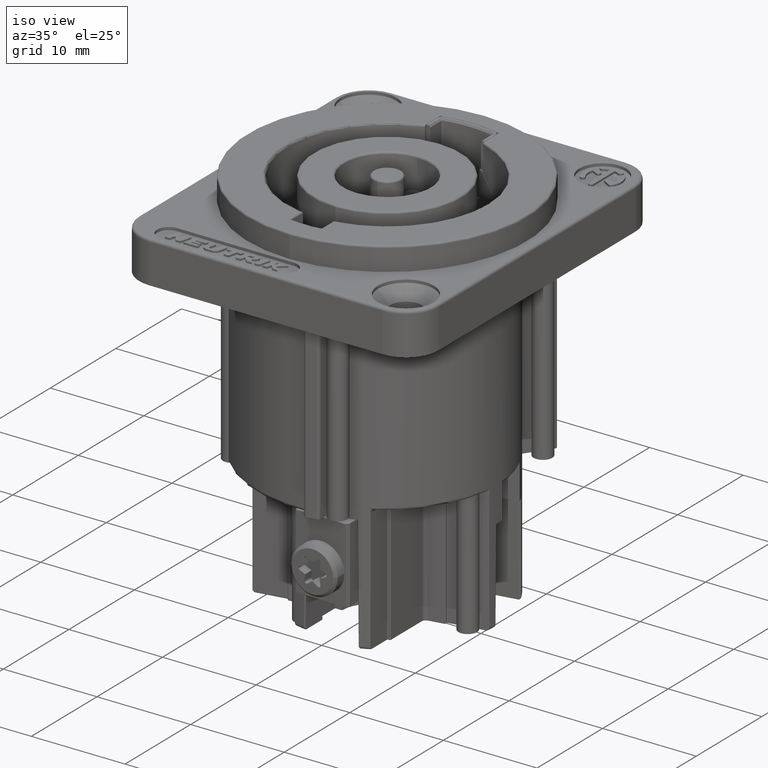
[diagram: clean part render]
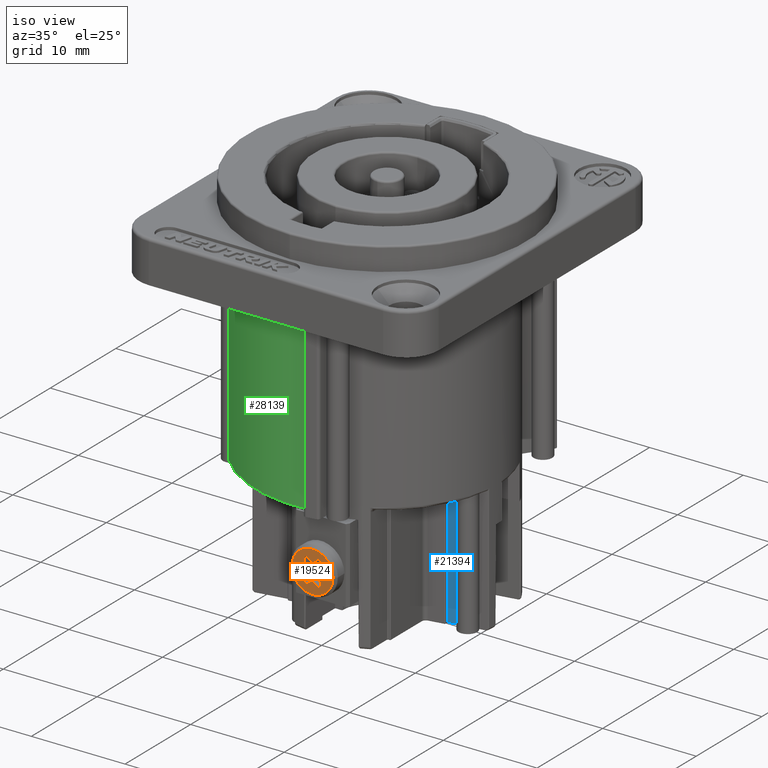
[diagram: same view with three faces highlighted in distinct colors, each labeled with its STEP entity id]
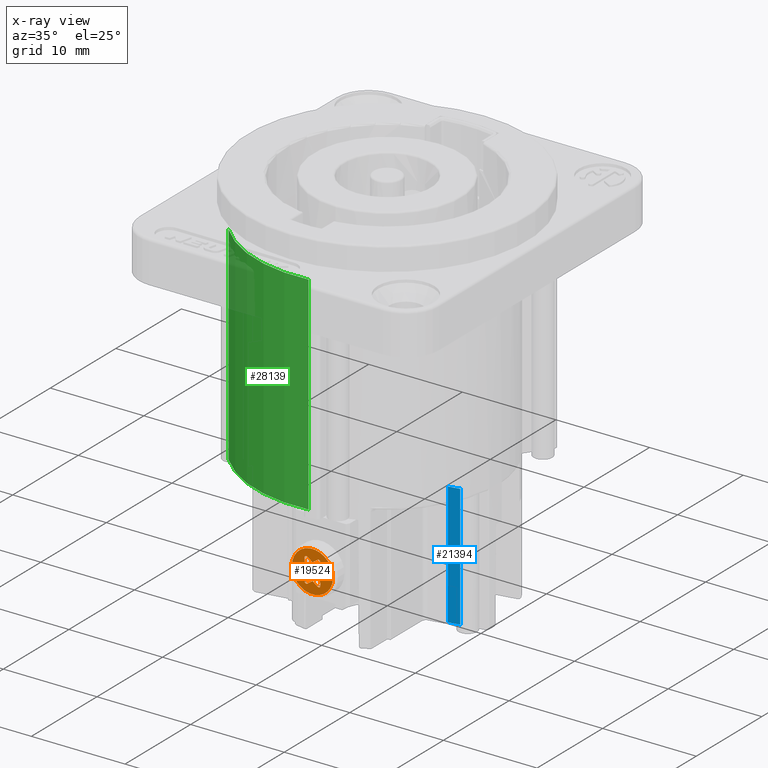
[diagram: x-ray of the same camera — body ghosted, the three highlighted faces saturated]
A machine part, iso view with three faces highlighted in distinct colors.
The next image is the same camera in x-ray (body ghosted, the three faces saturated) — at least one of them is partly hidden behind the body in this view.
Their STEP definitions:

[orange] entity #19524 — the highlighted planar face has unit normal (0, 1, 0).
#2655=CARTESIAN_POINT('',(1.5E0,-1.355E1,-3.28E1));
#2656=DIRECTION('',(0.E0,1.E0,0.E0));
#2657=DIRECTION('',(1.E0,0.E0,0.E0));
#2658=AXIS2_PLACEMENT_3D('',#2655,#2656,#2657);
#2664=CARTESIAN_POINT('',(1.5E0,-1.355E1,-3.28E1));
#2665=DIRECTION('',(0.E0,-1.E0,0.E0));
#2666=DIRECTION('',(1.E0,0.E0,0.E0));
#2667=AXIS2_PLACEMENT_3D('',#2664,#2665,#2666);
#2673=DIRECTION('',(9.150020847482E-1,0.E0,-4.034491106775E-1));
#2674=VECTOR('',#2673,6.617924689487E-1);
#2675=CARTESIAN_POINT('',(1.150356478353E-1,-1.355E1,-3.298300041695E1));
#2676=LINE('',#2675,#2674);
#2677=DIRECTION('',(-1.081038633930E-1,0.E0,-9.941396052464E-1));
#2678=VECTOR('',#2677,6.617924689484E-1);
#2679=CARTESIAN_POINT('',(7.205771365940E-1,-1.355E1,-3.325E1));
#2680=LINE('',#2679,#2678);
#2681=CARTESIAN_POINT('',(8.478627349856E-1,-1.355E1,-3.392953487651E1));
#2682=DIRECTION('',(0.E0,-1.E0,0.E0));
#2683=DIRECTION('',(-9.941396052464E-1,0.E0,1.081038633930E-1));
#2684=AXIS2_PLACEMENT_3D('',#2681,#2682,#2683);
#2686=DIRECTION('',(8.068982213551E-1,0.E0,5.906904945689E-1));
#2687=VECTOR('',#2686,6.617924689484E-1);
#2688=CARTESIAN_POINT('',(9.660008338994E-1,-1.355E1,-3.409091452079E1));
#2689=LINE('',#2688,#2687);
#2690=DIRECTION('',(8.068982213551E-1,0.E0,-5.906904945689E-1));
#2691=VECTOR('',#2690,6.617924689484E-1);
#2692=CARTESIAN_POINT('',(1.5E0,-1.355E1,-3.37E1));
#2693=LINE('',#2692,#2691);
#2694=CARTESIAN_POINT('',(2.152137265014E0,-1.355E1,-3.392953487651E1));
#2695=DIRECTION('',(0.E0,-1.E0,0.E0));
#2696=DIRECTION('',(-5.906904945689E-1,0.E0,-8.068982213551E-1));
#2697=AXIS2_PLACEMENT_3D('',#2694,#2695,#2696);
#2699=DIRECTION('',(-1.081038633931E-1,0.E0,9.941396052464E-1));
#2700=VECTOR('',#2699,6.617924689484E-1);
#2701=CARTESIAN_POINT('',(2.350965186064E0,-1.355E1,-3.390791410384E1));
#2702=LINE('',#2701,#2700);
#2703=DIRECTION('',(9.150020847482E-1,0.E0,4.034491106776E-1));
#2704=VECTOR('',#2703,6.617924689487E-1);
#2705=CARTESIAN_POINT('',(2.279422863406E0,-1.355E1,-3.325E1));
#2706=LINE('',#2705,#2704);
#2707=CARTESIAN_POINT('',(2.804274530029E0,-1.355E1,-3.28E1));
#2708=DIRECTION('',(0.E0,-1.E0,0.E0));
#2709=DIRECTION('',(4.034491106776E-1,0.E0,-9.150020847482E-1));
#2710=AXIS2_PLACEMENT_3D('',#2707,#2708,#2709);
#2712=DIRECTION('',(-9.150020847482E-1,0.E0,4.034491106776E-1));
#2713=VECTOR('',#2712,6.617924689487E-1);
#2714=CARTESIAN_POINT('',(2.884964352165E0,-1.355E1,-3.261699958305E1));
#2715=LINE('',#2714,#2713);
#2716=DIRECTION('',(1.081038633931E-1,0.E0,9.941396052464E-1));
#2717=VECTOR('',#2716,6.617924689484E-1);
#2718=CARTESIAN_POINT('',(2.279422863406E0,-1.355E1,-3.235E1));
#2719=LINE('',#2718,#2717);
#2720=CARTESIAN_POINT('',(2.152137265014E0,-1.355E1,-3.167046512349E1));
#2721=DIRECTION('',(0.E0,-1.E0,0.E0));
#2722=DIRECTION('',(9.941396052464E-1,0.E0,-1.081038633931E-1));
#2723=AXIS2_PLACEMENT_3D('',#2720,#2721,#2722);
#2725=DIRECTION('',(-8.068982213550E-1,0.E0,-5.906904945690E-1));
#2726=VECTOR('',#2725,6.617924689484E-1);
#2727=CARTESIAN_POINT('',(2.033999166101E0,-1.355E1,-3.150908547921E1));
#2728=LINE('',#2727,#2726);
#2729=DIRECTION('',(-8.068982213551E-1,0.E0,5.906904945688E-1));
#2730=VECTOR('',#2729,6.617924689484E-1);
#2731=CARTESIAN_POINT('',(1.5E0,-1.355E1,-3.19E1));
#2732=LINE('',#2731,#2730);
#2733=CARTESIAN_POINT('',(8.478627349856E-1,-1.355E1,-3.167046512349E1));
#2734=DIRECTION('',(0.E0,-1.E0,0.E0));
#2735=DIRECTION('',(5.906904945688E-1,0.E0,8.068982213551E-1));
#2736=AXIS2_PLACEMENT_3D('',#2733,#2734,#2735);
#2738=DIRECTION('',(1.081038633930E-1,0.E0,-9.941396052464E-1));
#2739=VECTOR('',#2738,6.617924689483E-1);
#2740=CARTESIAN_POINT('',(6.490348139363E-1,-1.355E1,-3.169208589616E1));
#2741=LINE('',#2740,#2739);
#2742=DIRECTION('',(-9.150020847482E-1,0.E0,-4.034491106775E-1));
#2743=VECTOR('',#2742,6.617924689487E-1);
#2744=CARTESIAN_POINT('',(7.205771365940E-1,-1.355E1,-3.235E1));
#2745=LINE('',#2744,#2743);
#2746=CARTESIAN_POINT('',(1.957254699708E-1,-1.355E1,-3.28E1));
#2747=DIRECTION('',(0.E0,-1.E0,0.E0));
#2748=DIRECTION('',(-4.034491106775E-1,0.E0,9.150020847482E-1));
#2749=AXIS2_PLACEMENT_3D('',#2746,#2747,#2748);
#16480=CARTESIAN_POINT('',(3.7E0,-1.355E1,-3.28E1));
#16482=VERTEX_POINT('',#16480);
#16484=CARTESIAN_POINT('',(-7.E-1,-1.355E1,-3.28E1));
#16486=VERTEX_POINT('',#16484);
#16524=CARTESIAN_POINT('',(1.150356478353E-1,-1.355E1,-3.298300041695E1));
#16525=CARTESIAN_POINT('',(7.205771365940E-1,-1.355E1,-3.325E1));
#16526=VERTEX_POINT('',#16524);
#16527=VERTEX_POINT('',#16525);
#16528=CARTESIAN_POINT('',(6.490348139363E-1,-1.355E1,-3.390791410384E1));
#16529=VERTEX_POINT('',#16528);
#16530=CARTESIAN_POINT('',(9.660008338994E-1,-1.355E1,-3.409091452079E1));
#16531=VERTEX_POINT('',#16530);
#16532=CARTESIAN_POINT('',(1.5E0,-1.355E1,-3.37E1));
#16533=VERTEX_POINT('',#16532);
#16534=CARTESIAN_POINT('',(2.033999166101E0,-1.355E1,-3.409091452079E1));
#16535=VERTEX_POINT('',#16534);
#16536=CARTESIAN_POINT('',(2.350965186064E0,-1.355E1,-3.390791410384E1));
#16537=VERTEX_POINT('',#16536);
#16538=CARTESIAN_POINT('',(2.279422863406E0,-1.355E1,-3.325E1));
#16539=VERTEX_POINT('',#16538);
#16540=CARTESIAN_POINT('',(2.884964352165E0,-1.355E1,-3.298300041695E1));
#16541=VERTEX_POINT('',#16540);
#16542=CARTESIAN_POINT('',(2.884964352165E0,-1.355E1,-3.261699958305E1));
#16543=VERTEX_POINT('',#16542);
#16544=CARTESIAN_POINT('',(2.279422863406E0,-1.355E1,-3.235E1));
#16545=VERTEX_POINT('',#16544);
#16546=CARTESIAN_POINT('',(2.350965186064E0,-1.355E1,-3.169208589616E1));
#16547=VERTEX_POINT('',#16546);
#16548=CARTESIAN_POINT('',(2.033999166101E0,-1.355E1,-3.150908547921E1));
#16549=VERTEX_POINT('',#16548);
#16550=CARTESIAN_POINT('',(1.5E0,-1.355E1,-3.19E1));
#16551=VERTEX_POINT('',#16550);
#16552=CARTESIAN_POINT('',(9.660008338993E-1,-1.355E1,-3.150908547921E1));
#16553=VERTEX_POINT('',#16552);
#16554=CARTESIAN_POINT('',(6.490348139363E-1,-1.355E1,-3.169208589616E1));
#16555=VERTEX_POINT('',#16554);
#16556=CARTESIAN_POINT('',(7.205771365940E-1,-1.355E1,-3.235E1));
#16557=VERTEX_POINT('',#16556);
#16558=CARTESIAN_POINT('',(1.150356478353E-1,-1.355E1,-3.261699958305E1));
#16559=VERTEX_POINT('',#16558);
#19477=CARTESIAN_POINT('',(1.5E0,-1.355E1,-3.28E1));
#19478=DIRECTION('',(0.E0,1.E0,0.E0));
#19479=DIRECTION('',(1.E0,0.E0,0.E0));
#19480=AXIS2_PLACEMENT_3D('',#19477,#19478,#19479);
#19481=PLANE('',#19480);
#19482=ORIENTED_EDGE('',*,*,#19463,.F.);
#19483=ORIENTED_EDGE('',*,*,#19445,.T.);
#19484=EDGE_LOOP('',(#19482,#19483));
#19485=FACE_OUTER_BOUND('',#19484,.F.);
#19487=ORIENTED_EDGE('',*,*,#19486,.T.);
#19489=ORIENTED_EDGE('',*,*,#19488,.T.);
#19491=ORIENTED_EDGE('',*,*,#19490,.T.);
#19493=ORIENTED_EDGE('',*,*,#19492,.T.);
#19495=ORIENTED_EDGE('',*,*,#19494,.T.);
#19497=ORIENTED_EDGE('',*,*,#19496,.T.);
#19499=ORIENTED_EDGE('',*,*,#19498,.T.);
#19501=ORIENTED_EDGE('',*,*,#19500,.T.);
#19503=ORIENTED_EDGE('',*,*,#19502,.T.);
#19505=ORIENTED_EDGE('',*,*,#19504,.T.);
#19507=ORIENTED_EDGE('',*,*,#19506,.T.);
#19509=ORIENTED_EDGE('',*,*,#19508,.T.);
#19511=ORIENTED_EDGE('',*,*,#19510,.T.);
#19513=ORIENTED_EDGE('',*,*,#19512,.T.);
#19515=ORIENTED_EDGE('',*,*,#19514,.T.);
#19517=ORIENTED_EDGE('',*,*,#19516,.T.);
#19519=ORIENTED_EDGE('',*,*,#19518,.T.);
#19521=ORIENTED_EDGE('',*,*,#19520,.T.);
#19522=EDGE_LOOP('',(#19487,#19489,#19491,#19493,#19495,#19497,#19499,#19501,
#19503,#19505,#19507,#19509,#19511,#19513,#19515,#19517,#19519,#19521));
#19523=FACE_BOUND('',#19522,.F.);
#2659=CIRCLE('',#2658,2.2E0);
#2668=CIRCLE('',#2667,2.2E0);
#2685=CIRCLE('',#2684,2.E-1);
#2698=CIRCLE('',#2697,2.E-1);
#2711=CIRCLE('',#2710,2.E-1);
#2724=CIRCLE('',#2723,2.E-1);
#2737=CIRCLE('',#2736,2.E-1);
#2750=CIRCLE('',#2749,2.E-1);
#19445=EDGE_CURVE('',#16482,#16486,#2659,.T.);
#19463=EDGE_CURVE('',#16482,#16486,#2668,.T.);
#19486=EDGE_CURVE('',#16526,#16527,#2676,.T.);
#19488=EDGE_CURVE('',#16527,#16529,#2680,.T.);
#19490=EDGE_CURVE('',#16529,#16531,#2685,.T.);
#19492=EDGE_CURVE('',#16531,#16533,#2689,.T.);
#19494=EDGE_CURVE('',#16533,#16535,#2693,.T.);
#19496=EDGE_CURVE('',#16535,#16537,#2698,.T.);
#19498=EDGE_CURVE('',#16537,#16539,#2702,.T.);
#19500=EDGE_CURVE('',#16539,#16541,#2706,.T.);
#19502=EDGE_CURVE('',#16541,#16543,#2711,.T.);
#19504=EDGE_CURVE('',#16543,#16545,#2715,.T.);
#19506=EDGE_CURVE('',#16545,#16547,#2719,.T.);
#19508=EDGE_CURVE('',#16547,#16549,#2724,.T.);
#19510=EDGE_CURVE('',#16549,#16551,#2728,.T.);
#19512=EDGE_CURVE('',#16551,#16553,#2732,.T.);
#19514=EDGE_CURVE('',#16553,#16555,#2737,.T.);
#19516=EDGE_CURVE('',#16555,#16557,#2741,.T.);
#19518=EDGE_CURVE('',#16557,#16559,#2745,.T.);
#19520=EDGE_CURVE('',#16559,#16526,#2750,.T.);
#19524=ADVANCED_FACE('',(#19485,#19523),#19481,.F.);

[blue] entity #21394 — the highlighted planar face has unit normal (0.1736, -0.9848, 0).
#3937=DIRECTION('',(-9.848077439232E-1,-1.736482292130E-1,1.265201059400E-11));
#3938=VECTOR('',#3937,1.186951323564E0);
#3939=CARTESIAN_POINT('',(9.029535224485E0,-1.758757135889E0,-2.73E1));
#3940=LINE('',#3939,#3938);
#3941=DIRECTION('',(0.E0,0.E0,-1.E0));
#3942=VECTOR('',#3941,1.31E1);
#3943=CARTESIAN_POINT('',(9.029535224485E0,-1.758757135889E0,-2.73E1));
#3944=LINE('',#3943,#3942);
#3945=DIRECTION('',(-9.848077530122E-1,-1.736481776669E-1,0.E0));
#3946=VECTOR('',#3945,1.186951323564E0);
#3947=CARTESIAN_POINT('',(9.029535224485E0,-1.758757135889E0,-4.04E1));
#3948=LINE('',#3947,#3946);
#3949=DIRECTION('',(-8.235267599313E-10,4.670437319325E-9,-1.E0));
#3950=VECTOR('',#3949,1.310000000002E1);
#3951=CARTESIAN_POINT('',(7.860616369379E0,-1.964869131388E0,
-2.729999999998E1));
#3952=LINE('',#3951,#3950);
#11563=CARTESIAN_POINT('',(9.029535224485E0,-1.758757135889E0,-2.73E1));
#14904=CARTESIAN_POINT('',(9.029535224485E0,-1.758757135889E0,-4.04E1));
#14905=CARTESIAN_POINT('',(7.860616358591E0,-1.964869070205E0,-4.04E1));
#14906=VERTEX_POINT('',#14904);
#14907=VERTEX_POINT('',#14905);
#15100=VERTEX_POINT('',#11563);
#15101=CARTESIAN_POINT('',(7.860616369379E0,-1.964869131388E0,
-2.729999999998E1));
#15102=VERTEX_POINT('',#15101);
#21380=CARTESIAN_POINT('',(1.173008940023E1,-1.282576571840E0,-2.7E1));
#21381=DIRECTION('',(1.736481776669E-1,-9.848077530122E-1,0.E0));
#21382=DIRECTION('',(-9.848077530122E-1,-1.736481776669E-1,0.E0));
#21383=AXIS2_PLACEMENT_3D('',#21380,#21381,#21382);
#21384=PLANE('',#21383);
#21386=ORIENTED_EDGE('',*,*,#21385,.F.);
#21388=ORIENTED_EDGE('',*,*,#21387,.T.);
#21390=ORIENTED_EDGE('',*,*,#21389,.T.);
#21391=ORIENTED_EDGE('',*,*,#21354,.F.);
#21392=EDGE_LOOP('',(#21386,#21388,#21390,#21391));
#21393=FACE_OUTER_BOUND('',#21392,.F.);
#21354=EDGE_CURVE('',#15102,#14907,#3952,.T.);
#21385=EDGE_CURVE('',#15100,#15102,#3940,.T.);
#21387=EDGE_CURVE('',#15100,#14906,#3944,.T.);
#21389=EDGE_CURVE('',#14906,#14907,#3948,.T.);
#21394=ADVANCED_FACE('',(#21393),#21384,.T.);

[green] entity #28139 — the highlighted cylindrical surface (partial cylindrical patch) has radius 14 mm, axis along (0, 0, -1).
#7335=CARTESIAN_POINT('',(0.E0,0.E0,-4.5E0));
#7336=DIRECTION('',(0.E0,0.E0,1.E0));
#7337=DIRECTION('',(-7.371592422669E-1,-6.757190625848E-1,0.E0));
#7338=AXIS2_PLACEMENT_3D('',#7335,#7336,#7337);
#8371=CARTESIAN_POINT('',(0.E0,0.E0,-2.67E1));
#8372=DIRECTION('',(0.E0,0.E0,-1.E0));
#8373=DIRECTION('',(9.642857142857E-2,-9.953399070731E-1,0.E0));
#8374=AXIS2_PLACEMENT_3D('',#8371,#8372,#8373);
#8376=DIRECTION('',(0.E0,0.E0,-1.E0));
#8377=VECTOR('',#8376,2.22E1);
#8378=CARTESIAN_POINT('',(-1.032022939174E1,-9.460066876187E0,-4.5E0));
#8379=LINE('',#8378,#8377);
#8400=DIRECTION('',(0.E0,0.E0,1.E0));
#8401=VECTOR('',#8400,2.22E1);
#8402=CARTESIAN_POINT('',(1.35E0,-1.393475869902E1,-2.67E1));
#8403=LINE('',#8402,#8401);
#14193=CARTESIAN_POINT('',(-1.032022939174E1,-9.460066876187E0,-4.5E0));
#14194=VERTEX_POINT('',#14193);
#14195=CARTESIAN_POINT('',(1.35E0,-1.393475869902E1,-4.5E0));
#14196=VERTEX_POINT('',#14195);
#14604=CARTESIAN_POINT('',(1.35E0,-1.393475869902E1,-2.67E1));
#14605=CARTESIAN_POINT('',(-1.032022939174E1,-9.460066876187E0,-2.67E1));
#14606=VERTEX_POINT('',#14604);
#14607=VERTEX_POINT('',#14605);
#28126=CARTESIAN_POINT('',(0.E0,0.E0,-2.7E1));
#28127=DIRECTION('',(0.E0,0.E0,-1.E0));
#28128=DIRECTION('',(1.E0,0.E0,0.E0));
#28129=AXIS2_PLACEMENT_3D('',#28126,#28127,#28128);
#28130=CYLINDRICAL_SURFACE('',#28129,1.4E1);
#28132=ORIENTED_EDGE('',*,*,#28131,.T.);
#28133=ORIENTED_EDGE('',*,*,#28116,.F.);
#28134=ORIENTED_EDGE('',*,*,#26533,.T.);
#28136=ORIENTED_EDGE('',*,*,#28135,.F.);
#28137=EDGE_LOOP('',(#28132,#28133,#28134,#28136));
#28138=FACE_OUTER_BOUND('',#28137,.F.);
#7339=CIRCLE('',#7338,1.4E1);
#8375=CIRCLE('',#8374,1.4E1);
#26533=EDGE_CURVE('',#14194,#14196,#7339,.T.);
#28116=EDGE_CURVE('',#14194,#14607,#8379,.T.);
#28131=EDGE_CURVE('',#14606,#14607,#8375,.T.);
#28135=EDGE_CURVE('',#14606,#14196,#8403,.T.);
#28139=ADVANCED_FACE('',(#28138),#28130,.T.);